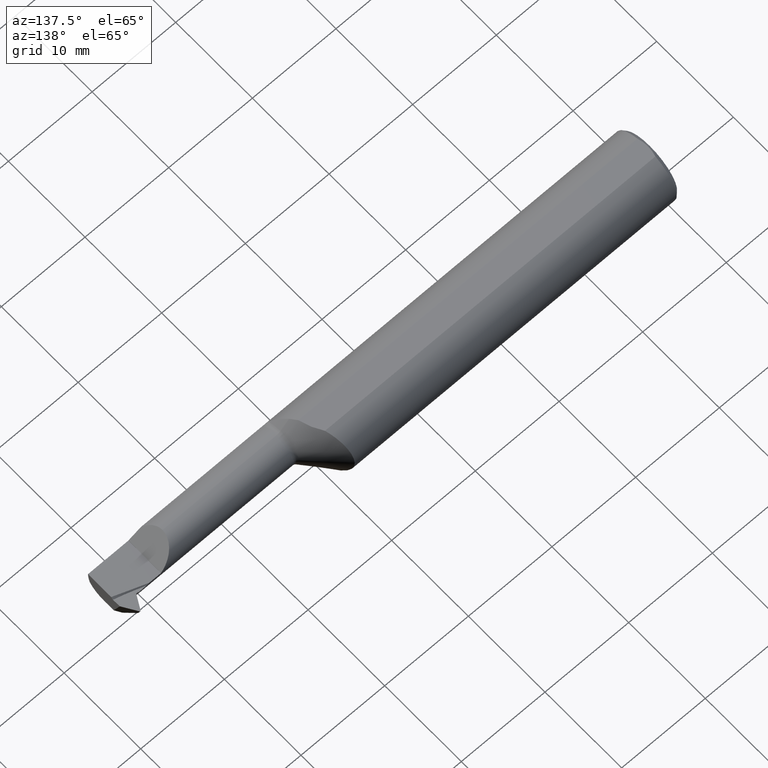
[diagram: clean part render]
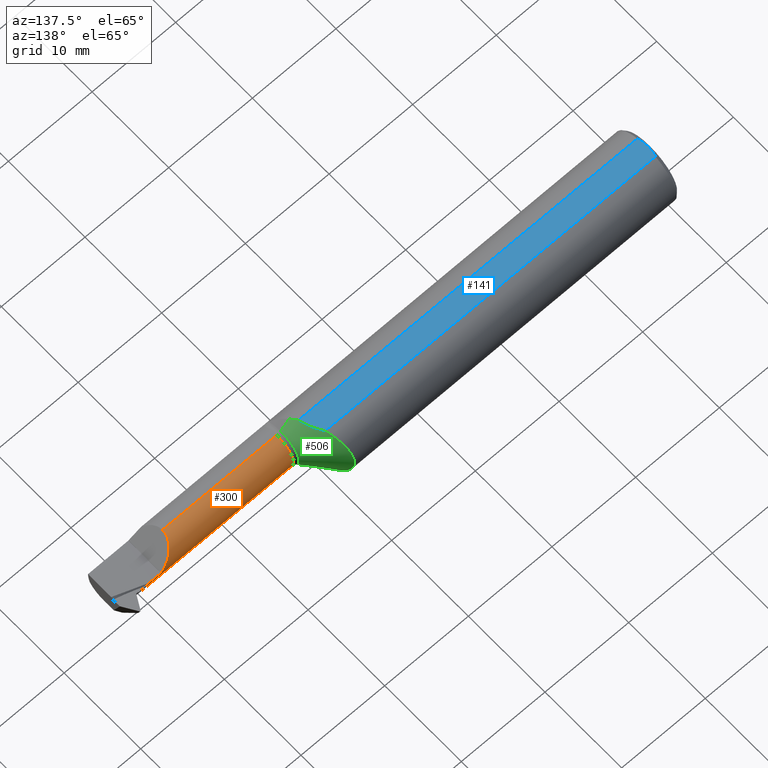
[diagram: same view with three faces highlighted in distinct colors, each labeled with its STEP entity id]
A machine part, auxiliary view with three faces highlighted in distinct colors.
Their STEP definitions:

[orange] entity #300 — the highlighted cylindrical surface (edge-blend (fillet) strip) has radius 2.2352 mm, axis along (-1, -0, -0).
#19 = EDGE_CURVE ( 'NONE', #76, #424, #215, .T. ) ;
#20 = CARTESIAN_POINT ( 'NONE',  ( 1.675000000000000044, -0.07609999999999980669, 0.000000000000000000 ) ) ;
#32 = EDGE_CURVE ( 'NONE', #812, #424, #341, .T. ) ;
#58 = DIRECTION ( 'NONE',  ( 0.000000000000000000, 0.000000000000000000, 1.000000000000000000 ) ) ;
#69 = CARTESIAN_POINT ( 'NONE',  ( 2.423000000000000043, -0.07609999999999980669, -0.08800000000000000877 ) ) ;
#76 = VERTEX_POINT ( 'NONE', #122 ) ;
#88 = ORIENTED_EDGE ( 'NONE', *, *, #156, .T. ) ;
#113 = AXIS2_PLACEMENT_3D ( 'NONE', #382, #394, #725 ) ;
#114 = AXIS2_PLACEMENT_3D ( 'NONE', #870, #877, #960 ) ;
#122 = CARTESIAN_POINT ( 'NONE',  ( 2.410782252778243873, 0.003682252778244059482, -0.03713209045594385166 ) ) ;
#142 = ORIENTED_EDGE ( 'NONE', *, *, #706, .T. ) ;
#156 = EDGE_CURVE ( 'NONE', #592, #994, #950, .T. ) ;
#157 = DIRECTION ( 'NONE',  ( -1.000000000000000000, -0.000000000000000000, -0.000000000000000000 ) ) ;
#159 = ORIENTED_EDGE ( 'NONE', *, *, #206, .F. ) ;
#162 = CARTESIAN_POINT ( 'NONE',  ( 2.412736202714342415, 0.008360727294472054469, -0.02707988946518264869 ) ) ;
#173 = CARTESIAN_POINT ( 'NONE',  ( 2.416976975946690587, 0.01174247722295373476, -0.005263002501887296611 ) ) ;
#174 = CARTESIAN_POINT ( 'NONE',  ( 2.416976975946690587, 0.01174247722295373476, -0.005263002501887296611 ) ) ;
#179 = CARTESIAN_POINT ( 'NONE',  ( 2.374368788714654066, 0.01184385199032761578, -0.003571000514272614466 ) ) ;
#184 = VECTOR ( 'NONE', #157, 39.37007874015748143 ) ;
#187 = ORIENTED_EDGE ( 'NONE', *, *, #199, .T. ) ;
#198 = CARTESIAN_POINT ( 'NONE',  ( 1.685355339059326996, -0.07609999999999980669, 0.08799999999999999489 ) ) ;
#199 = EDGE_CURVE ( 'NONE', #331, #592, #557, .T. ) ;
#202 = AXIS2_PLACEMENT_3D ( 'NONE', #20, #837, #966 ) ;
#206 = EDGE_CURVE ( 'NONE', #291, #570, #788, .T. ) ;
#215 =( BOUNDED_CURVE ( )  B_SPLINE_CURVE ( 3, ( #674, #162, #581, #174 ),
 .UNSPECIFIED., .F., .F. ) 
 B_SPLINE_CURVE_WITH_KNOTS ( ( 4, 4 ),
 ( 1.135195084971974300, 1.510953769230813259 ),
 .UNSPECIFIED. ) 
 CURVE ( )  GEOMETRIC_REPRESENTATION_ITEM ( )  RATIONAL_B_SPLINE_CURVE ( ( 1.000000000000000000, 0.9882683545268339254, 0.9882683545268339254, 1.000000000000000000 ) ) 
 REPRESENTATION_ITEM ( '' )  );
#217 = DIRECTION ( 'NONE',  ( 1.000000000000000000, 0.000000000000000000, 0.000000000000000000 ) ) ;
#223 = CARTESIAN_POINT ( 'NONE',  ( 2.310000000000000053, 0.01190000000000016912, -6.429183357567478880E-17 ) ) ;
#232 = CARTESIAN_POINT ( 'NONE',  ( 1.675000000000000044, -0.07609999999999979281, -0.08799999999999999489 ) ) ;
#252 = ORIENTED_EDGE ( 'NONE', *, *, #741, .T. ) ;
#291 = VERTEX_POINT ( 'NONE', #630 ) ;
#300 = ADVANCED_FACE ( 'NONE', ( #648 ), #427, .T. ) ;
#316 = CARTESIAN_POINT ( 'NONE',  ( 2.310000000000000053, 0.01189539760692049329, 0.0009000000000000391151 ) ) ;
#318 = EDGE_CURVE ( 'NONE', #380, #812, #364, .T. ) ;
#330 = CARTESIAN_POINT ( 'NONE',  ( 2.423000000000000043, 0.003682252778244077263, -0.03713209045594380309 ) ) ;
#331 = VERTEX_POINT ( 'NONE', #330 ) ;
#333 = CARTESIAN_POINT ( 'NONE',  ( 2.365781244003348771, 0.01190000000000019861, -7.042938013106792625E-17 ) ) ;
#341 = LINE ( 'NONE', #413, #912 ) ;
#364 = B_SPLINE_CURVE_WITH_KNOTS ( 'NONE', 3,
 ( #333, #487, #179, #814 ),
 .UNSPECIFIED., .F., .F.,
 ( 4, 4 ),
 ( 0.01140916447940157862, 0.01176182948466785415 ),
 .UNSPECIFIED. ) ;
#380 = VERTEX_POINT ( 'NONE', #665 ) ;
#382 = CARTESIAN_POINT ( 'NONE',  ( 2.423000000000000043, -0.07609999999999980669, 0.000000000000000000 ) ) ;
#394 = DIRECTION ( 'NONE',  ( -1.000000000000000000, -0.000000000000000000, -0.000000000000000000 ) ) ;
#406 = ORIENTED_EDGE ( 'NONE', *, *, #568, .F. ) ;
#408 = CIRCLE ( 'NONE', #1019, 0.08799999999999999489 ) ;
#413 = CARTESIAN_POINT ( 'NONE',  ( 1.675000000000000044, 0.01174247722295381977, -0.005263002501887287070 ) ) ;
#415 = ORIENTED_EDGE ( 'NONE', *, *, #318, .T. ) ;
#424 = VERTEX_POINT ( 'NONE', #173 ) ;
#427 = CYLINDRICAL_SURFACE ( 'NONE', #202, 0.08799999999999999489 ) ;
#446 = CARTESIAN_POINT ( 'NONE',  ( 2.222899999999999654, -0.02496785150417427449, 0.08800000000000000877 ) ) ;
#487 = CARTESIAN_POINT ( 'NONE',  ( 2.370055489615207733, 0.01190000000000018647, -0.001816063887274642786 ) ) ;
#491 = VECTOR ( 'NONE', #605, 39.37007874015748143 ) ;
#507 = ORIENTED_EDGE ( 'NONE', *, *, #32, .T. ) ;
#514 = ORIENTED_EDGE ( 'NONE', *, *, #911, .T. ) ;
#550 = CARTESIAN_POINT ( 'NONE',  ( 1.675000000000000044, -0.07609999999999980669, 0.08799999999999999489 ) ) ;
#557 = CIRCLE ( 'NONE', #113, 0.08799999999999999489 ) ;
#558 = ORIENTED_EDGE ( 'NONE', *, *, #620, .T. ) ;
#568 = EDGE_CURVE ( 'NONE', #331, #76, #1003, .T. ) ;
#570 = VERTEX_POINT ( 'NONE', #198 ) ;
#581 = CARTESIAN_POINT ( 'NONE',  ( 2.414825622772525104, 0.01107936284448546825, -0.01633075511381006789 ) ) ;
#592 = VERTEX_POINT ( 'NONE', #69 ) ;
#599 = CARTESIAN_POINT ( 'NONE',  ( 2.310000000000000053, 0.01189539760692049329, 0.0009000000000000391151 ) ) ;
#605 = DIRECTION ( 'NONE',  ( -1.000000000000000000, -0.000000000000000000, -0.000000000000000000 ) ) ;
#610 =( BOUNDED_CURVE ( )  B_SPLINE_CURVE ( 3, ( #921, #446, #761, #599 ),
 .UNSPECIFIED., .F., .F. ) 
 B_SPLINE_CURVE_WITH_KNOTS ( ( 4, 4 ),
 ( 0.000000000000000000, 1.560568875768707287 ),
 .UNSPECIFIED. ) 
 CURVE ( )  GEOMETRIC_REPRESENTATION_ITEM ( )  RATIONAL_B_SPLINE_CURVE ( ( 1.000000000000000000, 0.8071423132977800785, 0.8071423132977800785, 1.000000000000000000 ) ) 
 REPRESENTATION_ITEM ( '' )  );
#620 = EDGE_CURVE ( 'NONE', #656, #736, #408, .T. ) ;
#622 = LINE ( 'NONE', #805, #1040 ) ;
#623 = DIRECTION ( 'NONE',  ( -1.000000000000000000, -0.000000000000000000, -0.000000000000000000 ) ) ;
#630 = CARTESIAN_POINT ( 'NONE',  ( 2.222899999999999210, -0.07609999999999980669, 0.08799999999999999489 ) ) ;
#634 = DIRECTION ( 'NONE',  ( -1.000000000000000000, -0.000000000000000000, -0.000000000000000000 ) ) ;
#648 = FACE_OUTER_BOUND ( 'NONE', #760, .T. ) ;
#656 = VERTEX_POINT ( 'NONE', #316 ) ;
#665 = CARTESIAN_POINT ( 'NONE',  ( 2.365781244003348771, 0.01190000000000019861, -7.042938013106792625E-17 ) ) ;
#674 = CARTESIAN_POINT ( 'NONE',  ( 2.410782252778243873, 0.003682252778244059482, -0.03713209045594385166 ) ) ;
#684 = CARTESIAN_POINT ( 'NONE',  ( 1.685355339059326996, -0.07609999999999979281, -0.08799999999999999489 ) ) ;
#700 = ORIENTED_EDGE ( 'NONE', *, *, #19, .F. ) ;
#706 = EDGE_CURVE ( 'NONE', #736, #380, #622, .T. ) ;
#725 = DIRECTION ( 'NONE',  ( 0.000000000000000000, 0.000000000000000000, 1.000000000000000000 ) ) ;
#732 = CARTESIAN_POINT ( 'NONE',  ( 2.378695949030975587, 0.01174247722295387007, -0.005263002501887336509 ) ) ;
#736 = VERTEX_POINT ( 'NONE', #223 ) ;
#741 = EDGE_CURVE ( 'NONE', #994, #570, #766, .T. ) ;
#760 = EDGE_LOOP ( 'NONE', ( #187, #88, #252, #159, #514, #558, #142, #415, #507, #700, #406 ) ) ;
#761 = CARTESIAN_POINT ( 'NONE',  ( 2.258870525711519583, 0.01137245517912228825, 0.05202947428848025274 ) ) ;
#766 = CIRCLE ( 'NONE', #114, 0.08799999999999999489 ) ;
#788 = LINE ( 'NONE', #550, #184 ) ;
#805 = CARTESIAN_POINT ( 'NONE',  ( 1.675000000000000044, 0.01190000000000018647, -6.429183357567480113E-17 ) ) ;
#812 = VERTEX_POINT ( 'NONE', #732 ) ;
#814 = CARTESIAN_POINT ( 'NONE',  ( 2.378695949030975587, 0.01174247722295387007, -0.005263002501887336509 ) ) ;
#831 = VECTOR ( 'NONE', #623, 39.37007874015748143 ) ;
#837 = DIRECTION ( 'NONE',  ( -1.000000000000000000, -0.000000000000000000, -0.000000000000000000 ) ) ;
#846 = CARTESIAN_POINT ( 'NONE',  ( 1.675000000000000044, 0.003682252778244077263, -0.03713209045594379615 ) ) ;
#870 = CARTESIAN_POINT ( 'NONE',  ( 1.685355339059326996, -0.07609999999999980669, 0.000000000000000000 ) ) ;
#877 = DIRECTION ( 'NONE',  ( 1.000000000000000000, 0.000000000000000000, 0.000000000000000000 ) ) ;
#906 = DIRECTION ( 'NONE',  ( 1.000000000000000000, 0.000000000000000000, 0.000000000000000000 ) ) ;
#911 = EDGE_CURVE ( 'NONE', #291, #656, #610, .T. ) ;
#912 = VECTOR ( 'NONE', #906, 39.37007874015748143 ) ;
#921 = CARTESIAN_POINT ( 'NONE',  ( 2.222899999999999210, -0.07609999999999980669, 0.08799999999999999489 ) ) ;
#949 = CARTESIAN_POINT ( 'NONE',  ( 2.310000000000000053, -0.07609999999999980669, 0.000000000000000000 ) ) ;
#950 = LINE ( 'NONE', #232, #831 ) ;
#960 = DIRECTION ( 'NONE',  ( 0.000000000000000000, 0.000000000000000000, 1.000000000000000000 ) ) ;
#966 = DIRECTION ( 'NONE',  ( 0.000000000000000000, 0.000000000000000000, 1.000000000000000000 ) ) ;
#994 = VERTEX_POINT ( 'NONE', #684 ) ;
#1003 = LINE ( 'NONE', #846, #491 ) ;
#1019 = AXIS2_PLACEMENT_3D ( 'NONE', #949, #634, #58 ) ;
#1040 = VECTOR ( 'NONE', #217, 39.37007874015748143 ) ;

[blue] entity #141 — the highlighted planar face has unit normal (-0, 0, -1).
#8 = ORIENTED_EDGE ( 'NONE', *, *, #1016, .F. ) ;
#11 = AXIS2_PLACEMENT_3D ( 'NONE', #1004, #530, #112 ) ;
#40 = CARTESIAN_POINT ( 'NONE',  ( 0.008620033643014982441, -0.01559914152229295407, 0.1490999999999999825 ) ) ;
#72 = EDGE_CURVE ( 'NONE', #171, #582, #251, .T. ) ;
#77 = EDGE_CURVE ( 'NONE', #138, #267, #934, .T. ) ;
#112 = DIRECTION ( 'NONE',  ( -1.000000000000000000, 0.000000000000000000, 0.000000000000000000 ) ) ;
#124 = EDGE_CURVE ( 'NONE', #582, #267, #301, .T. ) ;
#126 = CARTESIAN_POINT ( 'NONE',  ( 0.01102802999246696621, 0.03114634426099326808, 0.1490999999999999825 ) ) ;
#127 = VECTOR ( 'NONE', #611, 39.37007874015748143 ) ;
#138 = VERTEX_POINT ( 'NONE', #923 ) ;
#141 = ADVANCED_FACE ( 'NONE', ( #689 ), #205, .F. ) ;
#163 = VERTEX_POINT ( 'NONE', #563 ) ;
#171 = VERTEX_POINT ( 'NONE', #878 ) ;
#205 = PLANE ( 'NONE',  #11 ) ;
#251 = B_SPLINE_CURVE_WITH_KNOTS ( 'NONE', 3,
 ( #857, #773, #126, #686, #438, #526 ),
 .UNSPECIFIED., .F., .F.,
 ( 4, 2, 4 ),
 ( 0.003719673573955643159, 0.004308633116653031933, 0.004897592659350421575 ),
 .UNSPECIFIED. ) ;
#267 = VERTEX_POINT ( 'NONE', #1027 ) ;
#278 = CARTESIAN_POINT ( 'NONE',  ( 0.01100253626952282099, -0.03102299601567365742, 0.1490999999999999270 ) ) ;
#285 = CARTESIAN_POINT ( 'NONE',  ( 0.007999999999999252501, 4.455076523320869569E-17, 0.1490999999999999270 ) ) ;
#301 = B_SPLINE_CURVE_WITH_KNOTS ( 'NONE', 3,
 ( #918, #769, #40, #278, #443, #369 ),
 .UNSPECIFIED., .F., .F.,
 ( 4, 2, 4 ),
 ( 0.004897592659350421575, 0.005485910453056772745, 0.006074228246763124783 ),
 .UNSPECIFIED. ) ;
#312 = CARTESIAN_POINT ( 'NONE',  ( 1.610935696970098308, -0.04622120725381383133, 0.1490999999999999270 ) ) ;
#349 = ORIENTED_EDGE ( 'NONE', *, *, #124, .T. ) ;
#369 = CARTESIAN_POINT ( 'NONE',  ( 0.01499999999999393485, -0.04622120725382292822, 0.1490999999999999270 ) ) ;
#370 = LINE ( 'NONE', #690, #643 ) ;
#393 = CARTESIAN_POINT ( 'NONE',  ( 1.607679123362856233, -0.02964729143139358328, 0.1490999999999999548 ) ) ;
#397 = CARTESIAN_POINT ( 'NONE',  ( 1.601797971871411264, -0.01333127449907001161, 0.1490999999999999270 ) ) ;
#438 = CARTESIAN_POINT ( 'NONE',  ( 0.007999999999999594241, 0.007838945166257060143, 0.1490999999999999548 ) ) ;
#443 = CARTESIAN_POINT ( 'NONE',  ( 0.01278044421364362901, -0.03872523995146039122, 0.1490999999999999548 ) ) ;
#483 = EDGE_LOOP ( 'NONE', ( #821, #8, #566, #349, #998 ) ) ;
#526 = CARTESIAN_POINT ( 'NONE',  ( 0.007999999999999252501, 4.455076523320869569E-17, 0.1490999999999999270 ) ) ;
#530 = DIRECTION ( 'NONE',  ( -0.000000000000000000, 0.000000000000000000, -1.000000000000000000 ) ) ;
#534 = CARTESIAN_POINT ( 'NONE',  ( 2.500000000000000000, -0.04622120725381385214, 0.1490999999999999270 ) ) ;
#538 = B_SPLINE_CURVE_WITH_KNOTS ( 'NONE', 3,
 ( #617, #939, #865, #397, #393, #312 ),
 .UNSPECIFIED., .F., .F.,
 ( 4, 2, 4 ),
 ( 0.004248111403087414736, 0.005539588731471057140, 0.006831066059854699543 ),
 .UNSPECIFIED. ) ;
#563 = CARTESIAN_POINT ( 'NONE',  ( 1.570144386278151449, 0.04622120725381383827, 0.1490999999999999270 ) ) ;
#566 = ORIENTED_EDGE ( 'NONE', *, *, #72, .T. ) ;
#582 = VERTEX_POINT ( 'NONE', #285 ) ;
#611 = DIRECTION ( 'NONE',  ( -1.000000000000000000, -0.000000000000000000, -0.000000000000000000 ) ) ;
#617 = CARTESIAN_POINT ( 'NONE',  ( 1.570144386278151449, 0.04622120725381383827, 0.1490999999999999270 ) ) ;
#643 = VECTOR ( 'NONE', #1006, 39.37007874015748143 ) ;
#679 = EDGE_CURVE ( 'NONE', #163, #138, #538, .T. ) ;
#686 = CARTESIAN_POINT ( 'NONE',  ( 0.008634235838431227744, 0.01573208929399681072, 0.1490999999999999270 ) ) ;
#689 = FACE_OUTER_BOUND ( 'NONE', #483, .T. ) ;
#690 = CARTESIAN_POINT ( 'NONE',  ( 2.500000000000000000, 0.04622120725381385214, 0.1490999999999999270 ) ) ;
#769 = CARTESIAN_POINT ( 'NONE',  ( 0.007999999999999585568, -0.007830403603065310900, 0.1490999999999999270 ) ) ;
#773 = CARTESIAN_POINT ( 'NONE',  ( 0.01278288443379421539, 0.03873348115474868625, 0.1490999999999999270 ) ) ;
#821 = ORIENTED_EDGE ( 'NONE', *, *, #679, .F. ) ;
#857 = CARTESIAN_POINT ( 'NONE',  ( 0.01499999999999970281, 0.04622120725381385214, 0.1490999999999999270 ) ) ;
#865 = CARTESIAN_POINT ( 'NONE',  ( 1.587561623634159869, 0.01734754105979970443, 0.1490999999999999825 ) ) ;
#878 = CARTESIAN_POINT ( 'NONE',  ( 0.01499999999999970281, 0.04622120725381385214, 0.1490999999999999270 ) ) ;
#918 = CARTESIAN_POINT ( 'NONE',  ( 0.007999999999999252501, 4.455076523320869569E-17, 0.1490999999999999270 ) ) ;
#923 = CARTESIAN_POINT ( 'NONE',  ( 1.610935696970098308, -0.04622120725381383133, 0.1490999999999999270 ) ) ;
#934 = LINE ( 'NONE', #534, #127 ) ;
#939 = CARTESIAN_POINT ( 'NONE',  ( 1.579182527830745641, 0.03197137784840498043, 0.1490999999999999270 ) ) ;
#998 = ORIENTED_EDGE ( 'NONE', *, *, #77, .F. ) ;
#1004 = CARTESIAN_POINT ( 'NONE',  ( 0.000000000000000000, 0.1749999999999999889, 0.1490999999999999270 ) ) ;
#1006 = DIRECTION ( 'NONE',  ( 1.000000000000000000, 0.000000000000000000, 0.000000000000000000 ) ) ;
#1016 = EDGE_CURVE ( 'NONE', #171, #163, #370, .T. ) ;
#1027 = CARTESIAN_POINT ( 'NONE',  ( 0.01499999999999393485, -0.04622120725382292822, 0.1490999999999999270 ) ) ;

[green] entity #506 — the highlighted conical surface has half-angle 45 deg.
#12 = AXIS2_PLACEMENT_3D ( 'NONE', #768, #926, #43 ) ;
#13 = VERTEX_POINT ( 'NONE', #753 ) ;
#17 = CARTESIAN_POINT ( 'NONE',  ( 1.667677669529663564, -0.07609999999999979281, -0.09532233047033639162 ) ) ;
#29 = CARTESIAN_POINT ( 'NONE',  ( 1.532687899053011504, 0.1503590421569865054, 0.04344544607852132700 ) ) ;
#37 = CARTESIAN_POINT ( 'NONE',  ( 1.533879873719947717, 0.1467490068820048454, 0.05438688777439014410 ) ) ;
#43 = DIRECTION ( 'NONE',  ( 0.000000000000000000, 0.000000000000000000, 1.000000000000000000 ) ) ;
#44 = CARTESIAN_POINT ( 'NONE',  ( 1.530767765083626886, 0.1561983557981438675, 0.01003359400291371079 ) ) ;
#53 = LINE ( 'NONE', #708, #459 ) ;
#61 = EDGE_CURVE ( 'NONE', #434, #163, #133, .T. ) ;
#85 = CARTESIAN_POINT ( 'NONE',  ( 1.626706199700792776, -0.07609999999999965403, -0.1362938002992067077 ) ) ;
#102 = CARTESIAN_POINT ( 'NONE',  ( 1.548311627111805810, 0.1046679885198931043, -0.1159372447474033979 ) ) ;
#118 = CARTESIAN_POINT ( 'NONE',  ( 1.566100644809369280, 0.05646901596201918394, 0.1459231650556713500 ) ) ;
#133 = B_SPLINE_CURVE_WITH_KNOTS ( 'NONE', 3,
 ( #839, #505, #897, #666, #983, #261, #273, #585, #830, #429, #590, #186, #513, #102, #433, #758, #991, #890, #452, #359, #363, #457, #777, #44, #372, #29, #37, #606, #1009, #848, #196, #696, #192, #1011, #118, #212 ),
 .UNSPECIFIED., .F., .F.,
 ( 4, 2, 2, 2, 2, 2, 2, 2, 2, 2, 2, 2, 2, 2, 2, 2, 2, 4 ),
 ( 0.003110930994557959892, 0.003973681353903181675, 0.004836431713248403458, 0.005699182072593624374, 0.006561932431938847024, 0.007424682791284067940, 0.008287433150629290590, 0.008718808330301900181, 0.009150183509974509771, 0.01001293386931973589, 0.01087568422866495854, 0.01173843458801018466, 0.01260118494735540905, 0.01346393530670063343, 0.01432668566604585782, 0.01518943602539108220, 0.01605218638473630832, 0.01691493674408153097 ),
 .UNSPECIFIED. ) ;
#138 = VERTEX_POINT ( 'NONE', #923 ) ;
#139 = LINE ( 'NONE', #698, #849 ) ;
#163 = VERTEX_POINT ( 'NONE', #563 ) ;
#168 = CARTESIAN_POINT ( 'NONE',  ( 1.616189882256011678, -0.05672020887657765187, 0.1458452949029919177 ) ) ;
#186 = CARTESIAN_POINT ( 'NONE',  ( 1.556062627151268751, 0.08312634177226713161, -0.1325705789283350144 ) ) ;
#192 = CARTESIAN_POINT ( 'NONE',  ( 1.555320778875575849, 0.08515054058264721892, 0.1312731220610433847 ) ) ;
#196 = CARTESIAN_POINT ( 'NONE',  ( 1.546141080797369671, 0.1107799545225836152, 0.1105230445280570434 ) ) ;
#211 = B_SPLINE_CURVE_WITH_KNOTS ( 'NONE', 3,
 ( #264, #168, #255, #417 ),
 .UNSPECIFIED., .F., .F.,
 ( 4, 4 ),
 ( 7.382152500697293703E-07, 0.0009159196454856685611 ),
 .UNSPECIFIED. ) ;
#212 = CARTESIAN_POINT ( 'NONE',  ( 1.570144386278151449, 0.04622120725381383827, 0.1490999999999999270 ) ) ;
#255 = CARTESIAN_POINT ( 'NONE',  ( 1.621442227582329920, -0.06667231583844418497, 0.1415577724176695362 ) ) ;
#261 = CARTESIAN_POINT ( 'NONE',  ( 1.592729287374496261, -0.007807587848976422530, -0.1562429486449703753 ) ) ;
#264 = CARTESIAN_POINT ( 'NONE',  ( 1.610935696970098308, -0.04622120725381383133, 0.1490999999999999270 ) ) ;
#273 = CARTESIAN_POINT ( 'NONE',  ( 1.588181447201820973, 0.002519520737367613068, -0.1564306795616402512 ) ) ;
#312 = CARTESIAN_POINT ( 'NONE',  ( 1.610935696970098308, -0.04622120725381383133, 0.1490999999999999270 ) ) ;
#346 = CARTESIAN_POINT ( 'NONE',  ( 1.667677669529663564, -0.07609999999999980669, 0.000000000000000000 ) ) ;
#359 = CARTESIAN_POINT ( 'NONE',  ( 1.534215880784538744, 0.1457367839870742643, -0.05704242602552606761 ) ) ;
#363 = CARTESIAN_POINT ( 'NONE',  ( 1.532957570238010936, 0.1495426852631769610, -0.04616949105331313863 ) ) ;
#372 = CARTESIAN_POINT ( 'NONE',  ( 1.531141773156916130, 0.1550540061005035442, 0.02129797022049680078 ) ) ;
#393 = CARTESIAN_POINT ( 'NONE',  ( 1.607679123362856233, -0.02964729143139358328, 0.1490999999999999548 ) ) ;
#397 = CARTESIAN_POINT ( 'NONE',  ( 1.601797971871411264, -0.01333127449907001161, 0.1490999999999999270 ) ) ;
#414 = EDGE_CURVE ( 'NONE', #823, #891, #693, .T. ) ;
#417 = CARTESIAN_POINT ( 'NONE',  ( 1.626706199700792776, -0.07609999999999968179, 0.1362938002992067077 ) ) ;
#423 = EDGE_CURVE ( 'NONE', #138, #13, #211, .T. ) ;
#429 = CARTESIAN_POINT ( 'NONE',  ( 1.567010607088304308, 0.05412176561188304647, -0.1467967206887914045 ) ) ;
#433 = CARTESIAN_POINT ( 'NONE',  ( 1.546899741308043419, 0.1086669464458839968, -0.1122013845914638236 ) ) ;
#434 = VERTEX_POINT ( 'NONE', #85 ) ;
#452 = CARTESIAN_POINT ( 'NONE',  ( 1.537449876678831373, 0.1360829398674953394, -0.07729477376118260024 ) ) ;
#457 = CARTESIAN_POINT ( 'NONE',  ( 1.531280914347882716, 0.1546295128890213255, -0.02417333993364552056 ) ) ;
#459 = VECTOR ( 'NONE', #715, 39.37007874015748143 ) ;
#473 = EDGE_LOOP ( 'NONE', ( #641, #826, #951, #1023, #938, #717 ) ) ;
#494 = CARTESIAN_POINT ( 'NONE',  ( 1.667677669529663564, -0.07609999999999980669, 0.09532233047033640549 ) ) ;
#495 = DIRECTION ( 'NONE',  ( -1.000000000000000000, -0.000000000000000000, -0.000000000000000000 ) ) ;
#505 = CARTESIAN_POINT ( 'NONE',  ( 1.621742310192378023, -0.06720975866797349041, -0.1412576898076213228 ) ) ;
#506 = ADVANCED_FACE ( 'NONE', ( #673 ), #642, .T. ) ;
#513 = CARTESIAN_POINT ( 'NONE',  ( 1.552771044772178088, 0.09217447577905538147, -0.1264498563721425384 ) ) ;
#538 = B_SPLINE_CURVE_WITH_KNOTS ( 'NONE', 3,
 ( #617, #939, #865, #397, #393, #312 ),
 .UNSPECIFIED., .F., .F.,
 ( 4, 2, 4 ),
 ( 0.004248111403087414736, 0.005539588731471057140, 0.006831066059854699543 ),
 .UNSPECIFIED. ) ;
#549 = DIRECTION ( 'NONE',  ( -0.7071067811865516806, 0.000000000000000000, 0.7071067811865433539 ) ) ;
#563 = CARTESIAN_POINT ( 'NONE',  ( 1.570144386278151449, 0.04622120725381383827, 0.1490999999999999270 ) ) ;
#585 = CARTESIAN_POINT ( 'NONE',  ( 1.579319089451871605, 0.02339435974748577812, -0.1546919824194771254 ) ) ;
#590 = CARTESIAN_POINT ( 'NONE',  ( 1.563225605245128325, 0.06398529392825023920, -0.1427964609321571987 ) ) ;
#606 = CARTESIAN_POINT ( 'NONE',  ( 1.536986910343659529, 0.1374578401896123236, 0.07482343719080140898 ) ) ;
#617 = CARTESIAN_POINT ( 'NONE',  ( 1.570144386278151449, 0.04622120725381383827, 0.1490999999999999270 ) ) ;
#639 = EDGE_CURVE ( 'NONE', #823, #13, #139, .T. ) ;
#641 = ORIENTED_EDGE ( 'NONE', *, *, #414, .T. ) ;
#642 = CONICAL_SURFACE ( 'NONE', #12, 0.2879999999999998672, 0.7853981633974423948 ) ;
#655 = EDGE_CURVE ( 'NONE', #891, #434, #53, .T. ) ;
#666 = CARTESIAN_POINT ( 'NONE',  ( 1.606998906861133225, -0.03841099848002848399, -0.1516466027304955166 ) ) ;
#673 = FACE_OUTER_BOUND ( 'NONE', #473, .T. ) ;
#679 = EDGE_CURVE ( 'NONE', #163, #138, #538, .T. ) ;
#693 = CIRCLE ( 'NONE', #833, 0.09532233047033640549 ) ;
#696 = CARTESIAN_POINT ( 'NONE',  ( 1.552027254221677977, 0.09423401906602353606, 0.1249299457553748188 ) ) ;
#698 = CARTESIAN_POINT ( 'NONE',  ( 1.474999999999997868, -0.07609999999999980669, 0.2879999999999998672 ) ) ;
#708 = CARTESIAN_POINT ( 'NONE',  ( 1.474999999999997868, -0.07609999999999976505, -0.2879999999999998672 ) ) ;
#715 = DIRECTION ( 'NONE',  ( -0.7071067811865516806, 8.659560562354882322E-17, -0.7071067811865433539 ) ) ;
#717 = ORIENTED_EDGE ( 'NONE', *, *, #639, .F. ) ;
#753 = CARTESIAN_POINT ( 'NONE',  ( 1.626706199700792776, -0.07609999999999968179, 0.1362938002992067077 ) ) ;
#758 = CARTESIAN_POINT ( 'NONE',  ( 1.544222012668610367, 0.1163179709796763883, -0.1042486718442271476 ) ) ;
#768 = CARTESIAN_POINT ( 'NONE',  ( 1.474999999999997868, -0.07609999999999980669, 0.000000000000000000 ) ) ;
#777 = CARTESIAN_POINT ( 'NONE',  ( 1.530836519003266449, 0.1559885724490455705, -0.01289048594769511523 ) ) ;
#823 = VERTEX_POINT ( 'NONE', #494 ) ;
#826 = ORIENTED_EDGE ( 'NONE', *, *, #655, .T. ) ;
#830 = CARTESIAN_POINT ( 'NONE',  ( 1.575032927891206525, 0.03388377653998506794, -0.1527427000066418350 ) ) ;
#833 = AXIS2_PLACEMENT_3D ( 'NONE', #346, #495, #894 ) ;
#839 = CARTESIAN_POINT ( 'NONE',  ( 1.626706199700792776, -0.07609999999999965403, -0.1362938002992067077 ) ) ;
#848 = CARTESIAN_POINT ( 'NONE',  ( 1.543525812468697911, 0.1182995851173735125, 0.1024596034648372622 ) ) ;
#849 = VECTOR ( 'NONE', #549, 39.37007874015748143 ) ;
#865 = CARTESIAN_POINT ( 'NONE',  ( 1.587561623634159869, 0.01734754105979970443, 0.1490999999999999825 ) ) ;
#890 = CARTESIAN_POINT ( 'NONE',  ( 1.539422301135399795, 0.1302433680280003225, -0.08676653150347675425 ) ) ;
#891 = VERTEX_POINT ( 'NONE', #17 ) ;
#894 = DIRECTION ( 'NONE',  ( 0.000000000000000000, 0.000000000000000000, 1.000000000000000000 ) ) ;
#897 = CARTESIAN_POINT ( 'NONE',  ( 1.616812169148768463, -0.05789496149929961033, -0.1453281471598950325 ) ) ;
#923 = CARTESIAN_POINT ( 'NONE',  ( 1.610935696970098308, -0.04622120725381383133, 0.1490999999999999270 ) ) ;
#926 = DIRECTION ( 'NONE',  ( -1.000000000000000000, -0.000000000000000000, -0.000000000000000000 ) ) ;
#938 = ORIENTED_EDGE ( 'NONE', *, *, #423, .T. ) ;
#939 = CARTESIAN_POINT ( 'NONE',  ( 1.579182527830745641, 0.03197137784840498043, 0.1490999999999999270 ) ) ;
#951 = ORIENTED_EDGE ( 'NONE', *, *, #61, .T. ) ;
#983 = CARTESIAN_POINT ( 'NONE',  ( 1.602112346281005184, -0.02822334644814710955, -0.1538709203994119701 ) ) ;
#991 = CARTESIAN_POINT ( 'NONE',  ( 1.542948678226318426, 0.1199920007254394738, -0.1000013436810295864 ) ) ;
#1009 = CARTESIAN_POINT ( 'NONE',  ( 1.538920538248711667, 0.1317206507298688545, 0.08451291234133570529 ) ) ;
#1011 = CARTESIAN_POINT ( 'NONE',  ( 1.562342633379365076, 0.06631164368567235567, 0.1417251320298381911 ) ) ;
#1023 = ORIENTED_EDGE ( 'NONE', *, *, #679, .T. ) ;